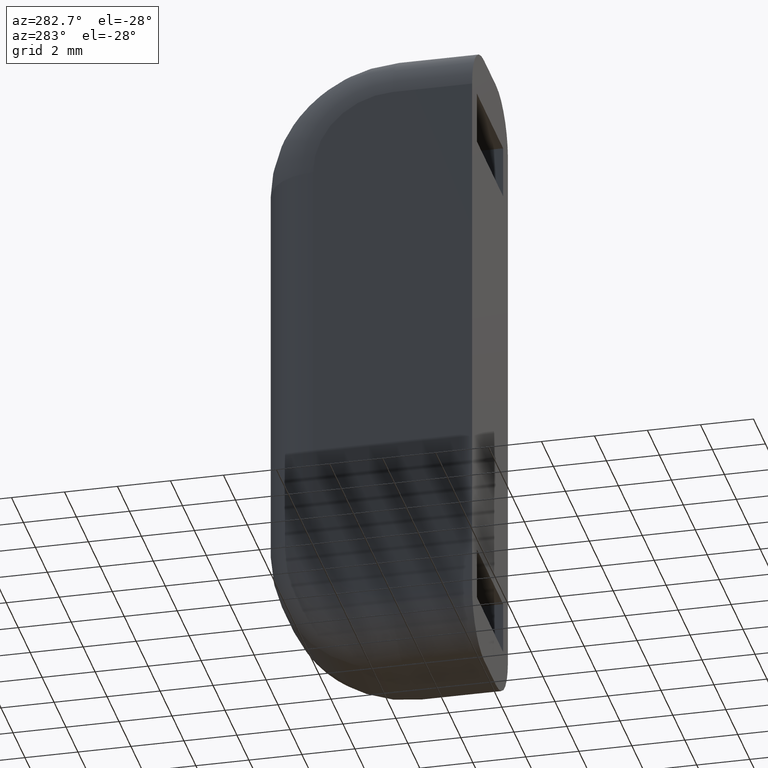
[diagram: clean part render]
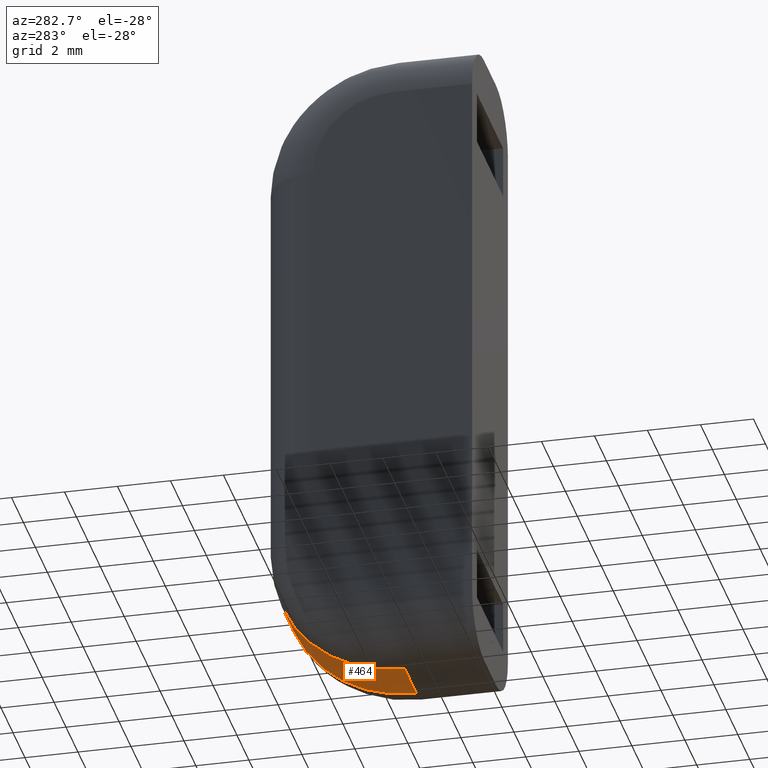
[diagram: same view with one face highlighted and labeled with its STEP entity id]
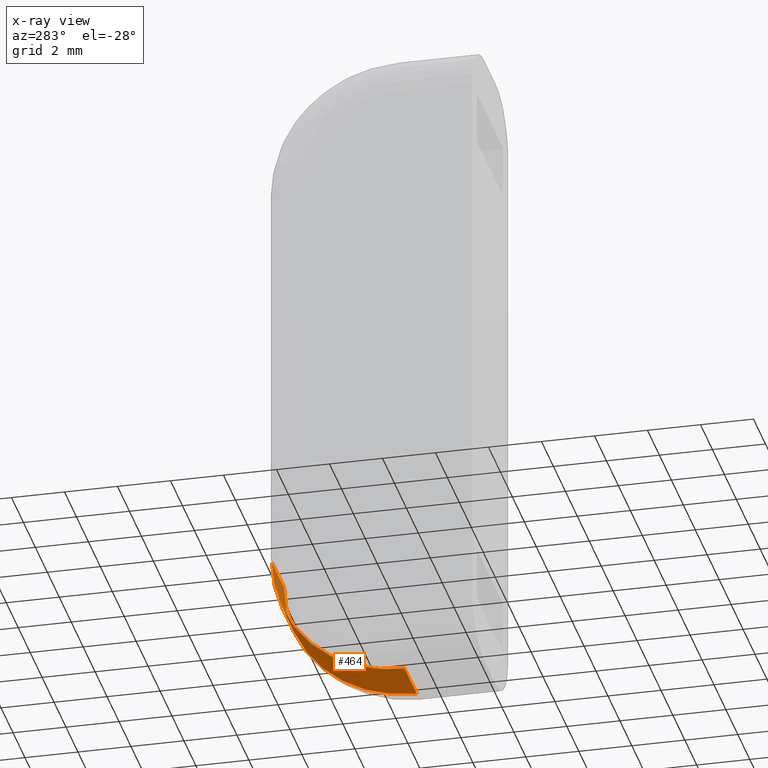
[diagram: x-ray of the same camera — body ghosted, the highlighted face saturated]
A machine part, auxiliary view. The second image highlights one B-rep face of the part: STEP entity #464.
The next image is the same camera in x-ray: the body ghosted, the highlighted face saturated — about 1% of this face is hidden behind the body in this view.
In plain terms, the highlighted cylindrical surface (partial cylindrical patch) has radius 5 mm, axis along (1, 0, 0).
Its self-contained STEP definition (entity closure, byte-faithful):
#23=CYLINDRICAL_SURFACE('',#530,5.);
#42=CIRCLE('',#524,5.);
#44=CIRCLE('',#531,5.);
#70=FACE_OUTER_BOUND('',#100,.T.);
#100=EDGE_LOOP('',(#399,#400,#401,#402));
#147=LINE('',#800,#191);
#149=LINE('',#804,#193);
#191=VECTOR('',#656,10.);
#193=VECTOR('',#660,10.);
#229=VERTEX_POINT('',#781);
#230=VERTEX_POINT('',#785);
#233=VERTEX_POINT('',#799);
#234=VERTEX_POINT('',#803);
#284=EDGE_CURVE('',#230,#229,#42,.T.);
#290=EDGE_CURVE('',#233,#229,#147,.T.);
#292=EDGE_CURVE('',#230,#234,#149,.T.);
#293=EDGE_CURVE('',#233,#234,#44,.T.);
#399=ORIENTED_EDGE('',*,*,#284,.F.);
#400=ORIENTED_EDGE('',*,*,#292,.T.);
#401=ORIENTED_EDGE('',*,*,#293,.F.);
#402=ORIENTED_EDGE('',*,*,#290,.T.);
#464=ADVANCED_FACE('',(#70),#23,.T.);
#524=AXIS2_PLACEMENT_3D('',#787,#640,#641);
#530=AXIS2_PLACEMENT_3D('',#802,#658,#659);
#531=AXIS2_PLACEMENT_3D('',#805,#661,#662);
#640=DIRECTION('center_axis',(1.,-5.55111512312577E-16,0.));
#641=DIRECTION('ref_axis',(3.88578058618804E-16,0.707106781186548,-0.707106781186547));
#656=DIRECTION('',(1.,2.96059473233375E-15,0.));
#658=DIRECTION('center_axis',(1.,2.96059473233375E-15,0.));
#659=DIRECTION('ref_axis',(-2.04112019628891E-15,0.707106781186547,-0.707106781186547));
#660=DIRECTION('',(-1.,-2.96059473233375E-15,0.));
#661=DIRECTION('center_axis',(-1.,-2.08166817117217E-16,0.));
#662=DIRECTION('ref_axis',(-1.66533453693774E-16,0.707106781186547,-0.707106781186548));
#781=CARTESIAN_POINT('',(0.999999999999998,8.00000000000001,-20.));
#785=CARTESIAN_POINT('',(1.00000000000002,3.00000000000001,-25.));
#787=CARTESIAN_POINT('Origin',(1.00000000000002,3.00000000000001,-20.));
#799=CARTESIAN_POINT('',(-1.00000000000001,8.,-20.));
#800=CARTESIAN_POINT('',(-1.50000000000001,8.,-20.));
#802=CARTESIAN_POINT('Origin',(-1.49999999999999,3.,-20.));
#803=CARTESIAN_POINT('',(-1.,3.,-25.));
#804=CARTESIAN_POINT('',(-1.49999999999999,3.,-25.));
#805=CARTESIAN_POINT('Origin',(-1.00000000000001,3.,-20.));